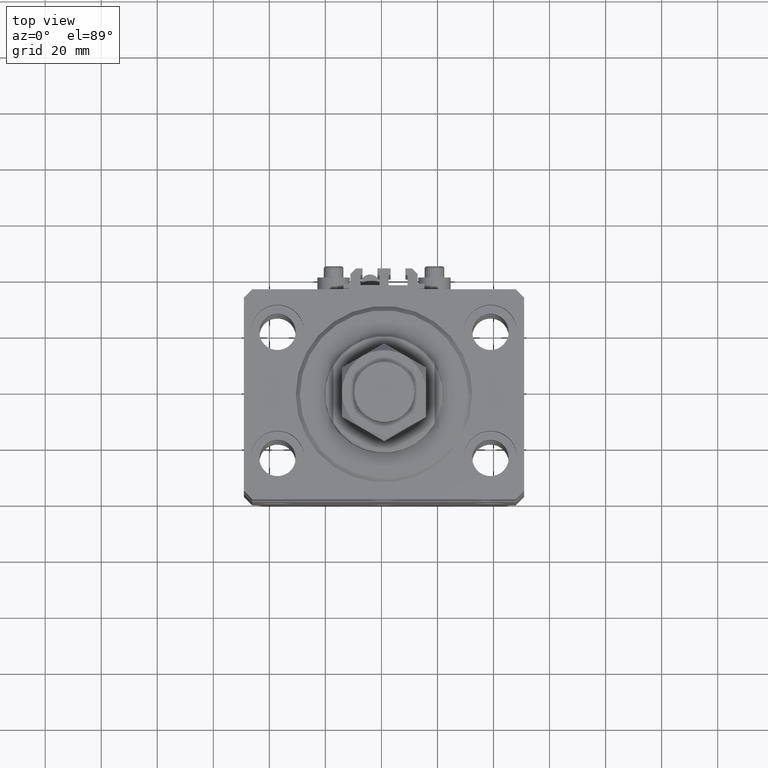
[diagram: clean part render]
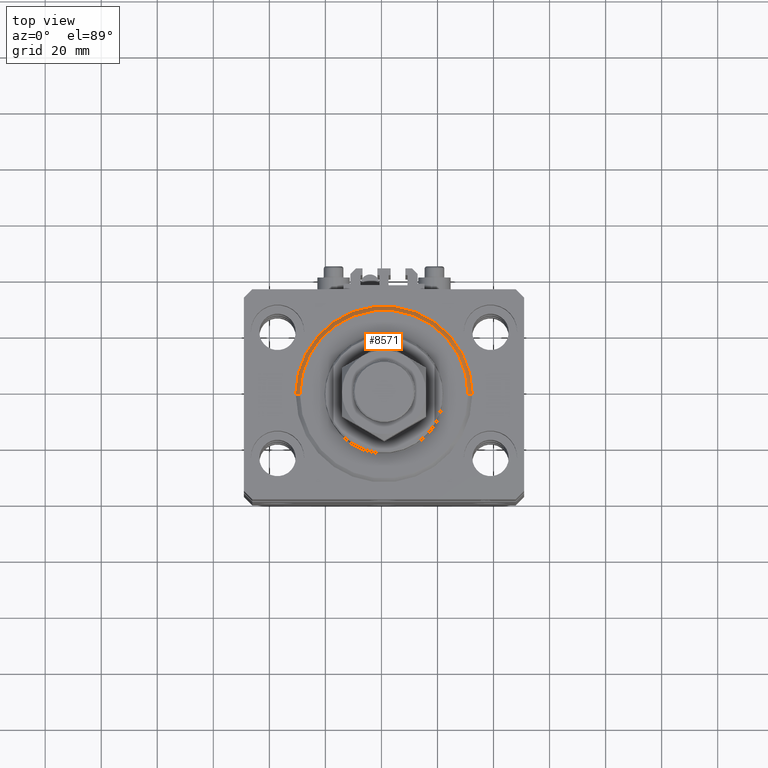
[diagram: same view with one face highlighted and labeled with its STEP entity id]
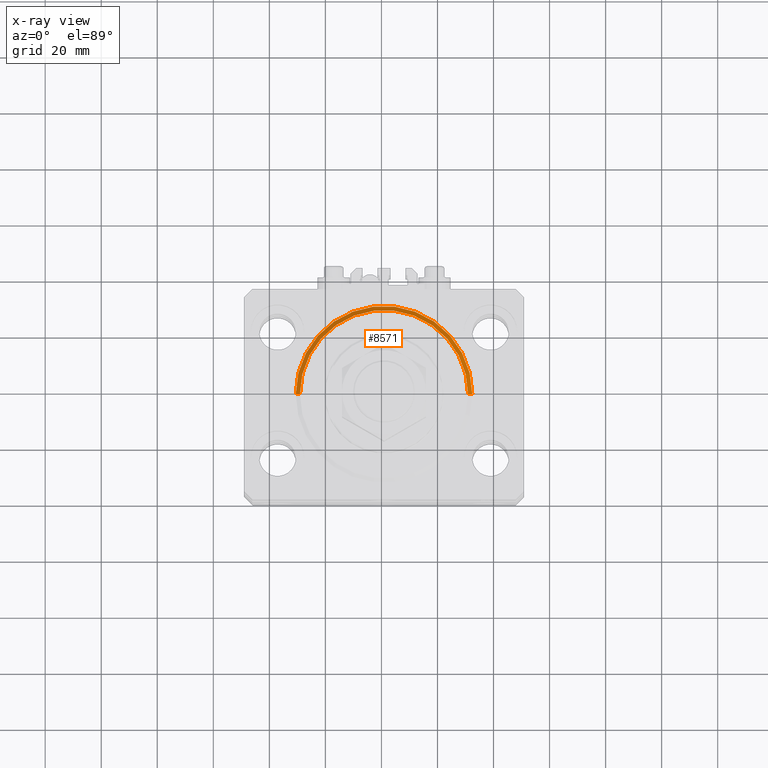
[diagram: x-ray of the same camera — body ghosted, the highlighted face saturated]
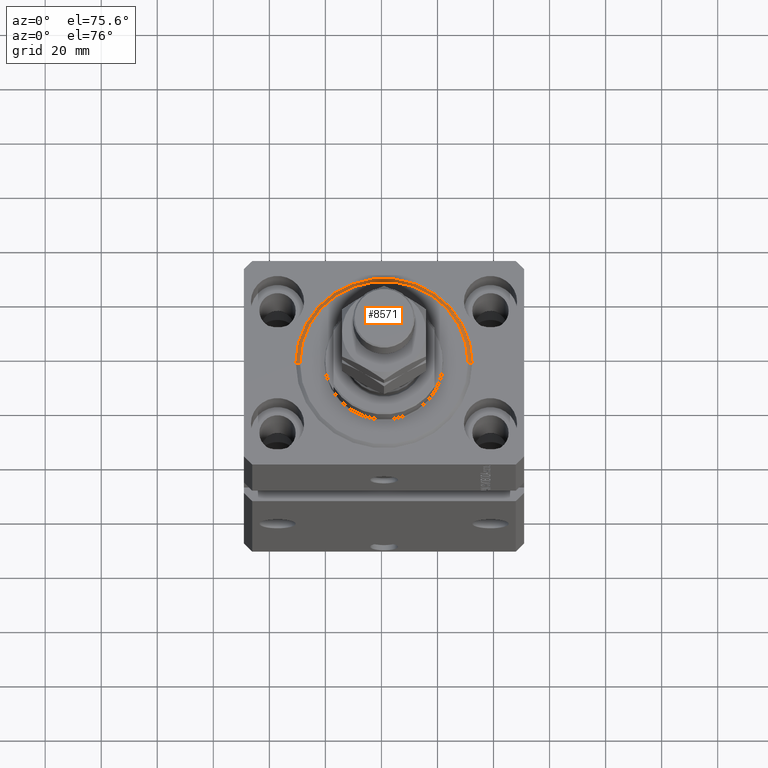
[diagram: same view with one face highlighted and labeled with its STEP entity id]
A machine part, top view. The second image highlights one B-rep face of the part: STEP entity #8571.
The next image is the same camera in x-ray: the body ghosted, the highlighted face saturated — about 0% of this face is hidden behind the body in this view.
A second angle (auxiliary view) of the same face is appended — the face is thin or edge-on in the first view.
In plain terms, the highlighted conical surface has half-angle 45 deg.
Its self-contained STEP definition (entity closure, byte-faithful):
#56 = DIRECTION ( 'NONE',  ( 0.7071067811865491270, 0.000000000000000000, 0.7071067811865459074 ) ) ;
#1760 = EDGE_CURVE ( 'NONE', #7758, #32445, #5805, .T. ) ;
#3883 = FACE_OUTER_BOUND ( 'NONE', #38707, .T. ) ;
#3903 = CARTESIAN_POINT ( 'NONE',  ( 31.50000000000000000, 0.000000000000000000, 1.500000000000001332 ) ) ;
#4116 = ORIENTED_EDGE ( 'NONE', *, *, #17957, .F. ) ;
#5805 = CIRCLE ( 'NONE', #21339, 29.99999999999999289 ) ;
#6588 = LINE ( 'NONE', #46052, #26776 ) ;
#7389 = CARTESIAN_POINT ( 'NONE',  ( 29.99999999999999289, 0.000000000000000000, 0.000000000000000000 ) ) ;
#7758 = VERTEX_POINT ( 'NONE', #14508 ) ;
#8571 = ADVANCED_FACE ( 'NONE', ( #3883 ), #42877, .T. ) ;
#8876 = ORIENTED_EDGE ( 'NONE', *, *, #50146, .F. ) ;
#9225 = VECTOR ( 'NONE', #56, 1000.000000000000000 ) ;
#13860 = DIRECTION ( 'NONE',  ( 1.000000000000000000, 0.000000000000000000, 0.000000000000000000 ) ) ;
#14508 = CARTESIAN_POINT ( 'NONE',  ( -29.99999999999999289, 3.765788907378110539E-15, 0.000000000000000000 ) ) ;
#16965 = AXIS2_PLACEMENT_3D ( 'NONE', #34094, #29493, #13860 ) ;
#17957 = EDGE_CURVE ( 'NONE', #32445, #18943, #31815, .T. ) ;
#18943 = VERTEX_POINT ( 'NONE', #48338 ) ;
#20031 = ORIENTED_EDGE ( 'NONE', *, *, #31614, .T. ) ;
#20205 = CARTESIAN_POINT ( 'NONE',  ( 0.000000000000000000, 0.000000000000000000, 1.500000000000001332 ) ) ;
#21339 = AXIS2_PLACEMENT_3D ( 'NONE', #33129, #48773, #45428 ) ;
#22725 = DIRECTION ( 'NONE',  ( -0.7071067811865491270, 8.659560562354952580E-17, 0.7071067811865459074 ) ) ;
#26776 = VECTOR ( 'NONE', #22725, 1000.000000000000000 ) ;
#28393 = DIRECTION ( 'NONE',  ( 1.000000000000000000, 0.000000000000000000, 0.000000000000000000 ) ) ;
#29493 = DIRECTION ( 'NONE',  ( -0.000000000000000000, -0.000000000000000000, 1.000000000000000000 ) ) ;
#31614 = EDGE_CURVE ( 'NONE', #7758, #40954, #6588, .T. ) ;
#31815 = LINE ( 'NONE', #3903, #9225 ) ;
#32445 = VERTEX_POINT ( 'NONE', #7389 ) ;
#33129 = CARTESIAN_POINT ( 'NONE',  ( 0.000000000000000000, 0.000000000000000000, 0.000000000000000000 ) ) ;
#34094 = CARTESIAN_POINT ( 'NONE',  ( 0.000000000000000000, 0.000000000000000000, 1.500000000000001332 ) ) ;
#37034 = AXIS2_PLACEMENT_3D ( 'NONE', #20205, #47627, #28393 ) ;
#37371 = ORIENTED_EDGE ( 'NONE', *, *, #1760, .F. ) ;
#37430 = CIRCLE ( 'NONE', #16965, 31.50000000000000000 ) ;
#38707 = EDGE_LOOP ( 'NONE', ( #37371, #20031, #8876, #4116 ) ) ;
#40954 = VERTEX_POINT ( 'NONE', #46293 ) ;
#42877 = CONICAL_SURFACE ( 'NONE', #37034, 31.50000000000000000, 0.7853981633974506105 ) ;
#45428 = DIRECTION ( 'NONE',  ( 1.000000000000000000, 0.000000000000000000, 0.000000000000000000 ) ) ;
#46052 = CARTESIAN_POINT ( 'NONE',  ( -31.50000000000000000, 3.857637417314162689E-15, 1.500000000000001332 ) ) ;
#46293 = CARTESIAN_POINT ( 'NONE',  ( -31.50000000000000000, 0.000000000000000000, 1.500000000000001332 ) ) ;
#47627 = DIRECTION ( 'NONE',  ( -0.000000000000000000, -0.000000000000000000, 1.000000000000000000 ) ) ;
#48338 = CARTESIAN_POINT ( 'NONE',  ( 31.50000000000000000, 3.857637417314162689E-15, 1.500000000000001332 ) ) ;
#48773 = DIRECTION ( 'NONE',  ( -0.000000000000000000, -0.000000000000000000, -1.000000000000000000 ) ) ;
#50146 = EDGE_CURVE ( 'NONE', #18943, #40954, #37430, .T. ) ;